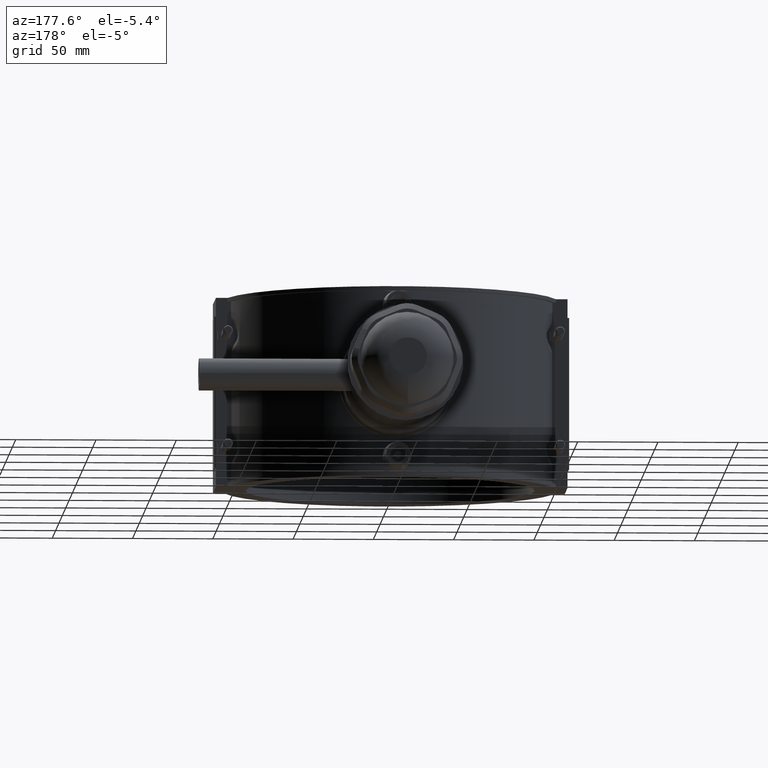
[diagram: clean part render]
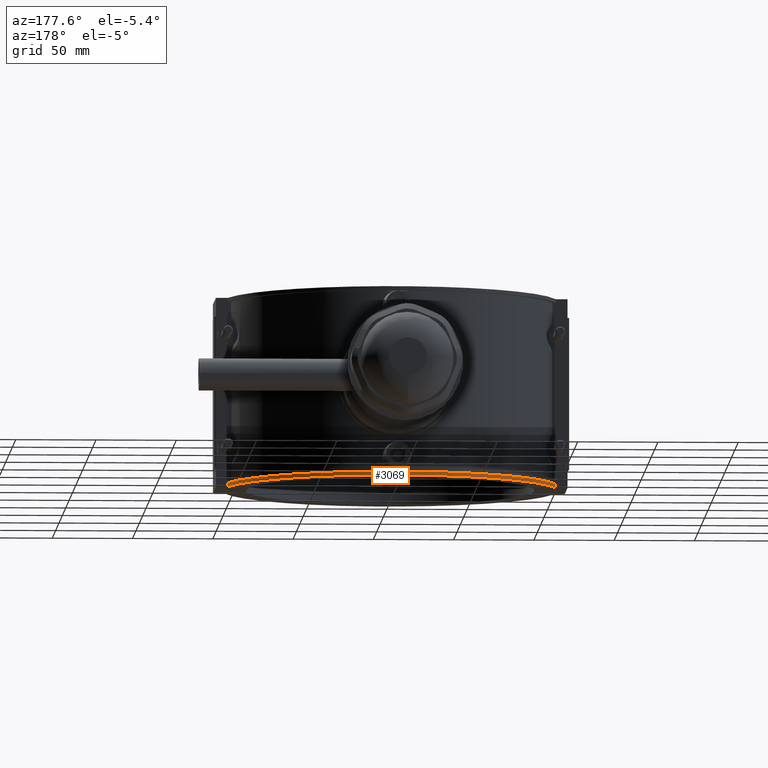
[diagram: same view with one face highlighted and labeled with its STEP entity id]
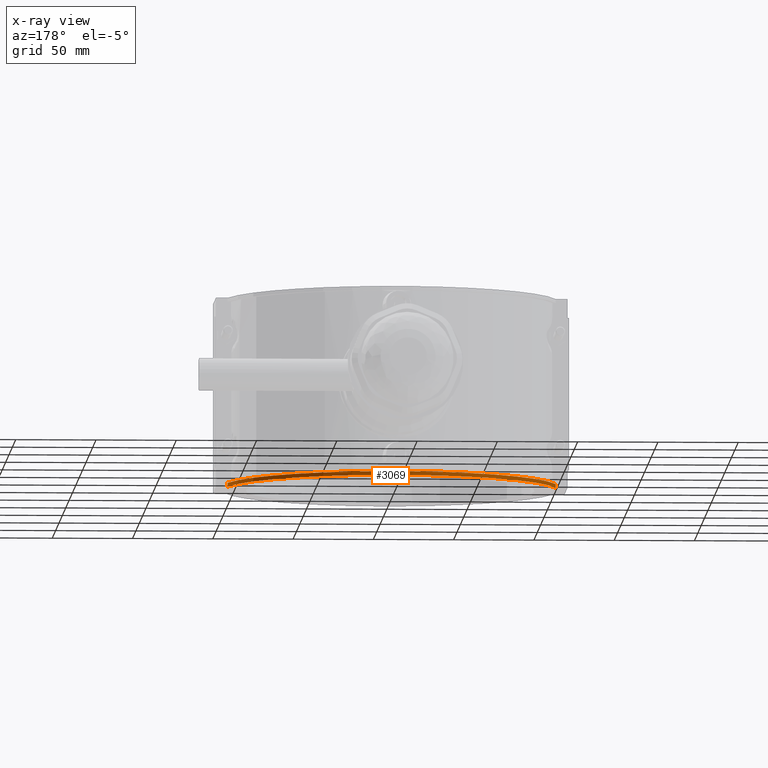
[diagram: x-ray of the same camera — body ghosted, the highlighted face saturated]
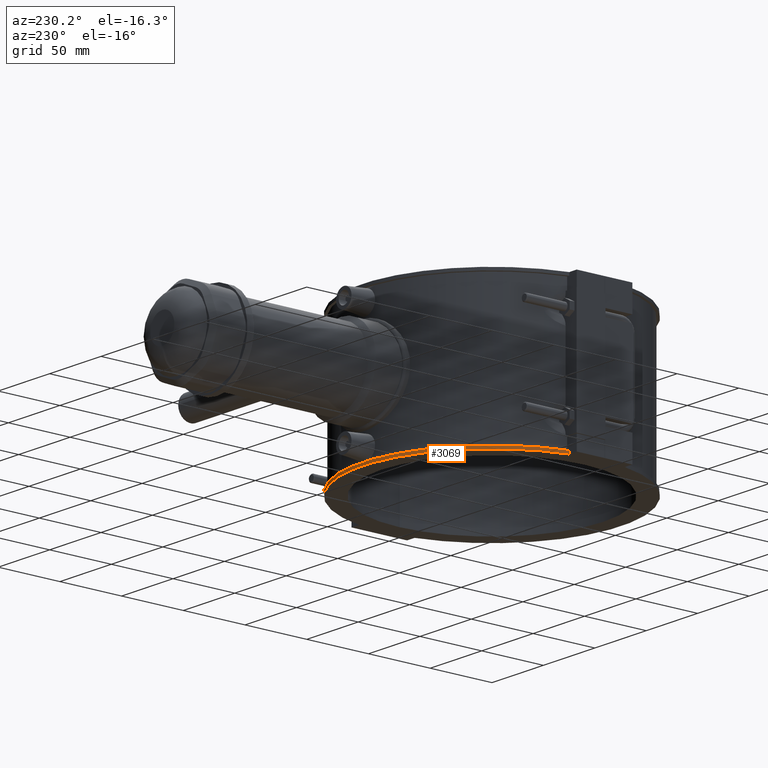
[diagram: same view with one face highlighted and labeled with its STEP entity id]
A machine part, auxiliary view. The second image highlights one B-rep face of the part: STEP entity #3069.
The next image is the same camera in x-ray: the body ghosted, the highlighted face saturated — about 0% of this face is hidden behind the body in this view.
A second angle (auxiliary view) of the same face is appended — the face is thin or edge-on in the first view.
In plain terms, the highlighted cylindrical surface (partial cylindrical patch) has radius 104.652 mm, axis along (0, 0, -1).
Its self-contained STEP definition (entity closure, byte-faithful):
#97=LINE('',#5143,#376);
#98=LINE('',#5146,#377);
#376=VECTOR('',#3719,2.36);
#377=VECTOR('',#3722,2.36);
#722=CYLINDRICAL_SURFACE('',#3288,104.652);
#804=FACE_OUTER_BOUND('',#1003,.T.);
#1003=EDGE_LOOP('',(#2218,#2219,#2220,#2221));
#1211=CIRCLE('',#3289,104.652);
#1212=CIRCLE('',#3290,104.652);
#1351=VERTEX_POINT('',#5139);
#1352=VERTEX_POINT('',#5140);
#1353=VERTEX_POINT('',#5142);
#1354=VERTEX_POINT('',#5144);
#1681=EDGE_CURVE('',#1351,#1352,#1211,.T.);
#1682=EDGE_CURVE('',#1353,#1352,#97,.T.);
#1683=EDGE_CURVE('',#1353,#1354,#1212,.T.);
#1684=EDGE_CURVE('',#1351,#1354,#98,.T.);
#2218=ORIENTED_EDGE('',*,*,#1681,.T.);
#2219=ORIENTED_EDGE('',*,*,#1682,.F.);
#2220=ORIENTED_EDGE('',*,*,#1683,.T.);
#2221=ORIENTED_EDGE('',*,*,#1684,.F.);
#3069=ADVANCED_FACE('',(#804),#722,.T.);
#3288=AXIS2_PLACEMENT_3D('',#5138,#3715,#3716);
#3289=AXIS2_PLACEMENT_3D('',#5141,#3717,#3718);
#3290=AXIS2_PLACEMENT_3D('',#5145,#3720,#3721);
#3715=DIRECTION('center_axis',(0.,0.,-1.));
#3716=DIRECTION('ref_axis',(0.976614427290077,0.21499828001376,0.));
#3717=DIRECTION('center_axis',(0.,0.,1.));
#3718=DIRECTION('ref_axis',(0.976614427290077,0.21499828001376,0.));
#3719=DIRECTION('',(0.,0.,-1.));
#3720=DIRECTION('center_axis',(0.,0.,-1.));
#3721=DIRECTION('ref_axis',(0.976614427290077,0.21499828001376,0.));
#3722=DIRECTION('',(0.,0.,1.));
#5138=CARTESIAN_POINT('Origin',(0.,0.,-59.));
#5139=CARTESIAN_POINT('',(102.204653044761,22.5,-59.));
#5140=CARTESIAN_POINT('',(-102.204653044761,22.5,-59.));
#5141=CARTESIAN_POINT('Origin',(0.,0.,-59.));
#5142=CARTESIAN_POINT('',(-102.204653044761,22.5,-56.64));
#5143=CARTESIAN_POINT('',(-102.204653044761,22.5,-59.));
#5144=CARTESIAN_POINT('',(102.204653044761,22.5,-56.64));
#5145=CARTESIAN_POINT('Origin',(0.,0.,-56.64));
#5146=CARTESIAN_POINT('',(102.204653044761,22.5,-59.));